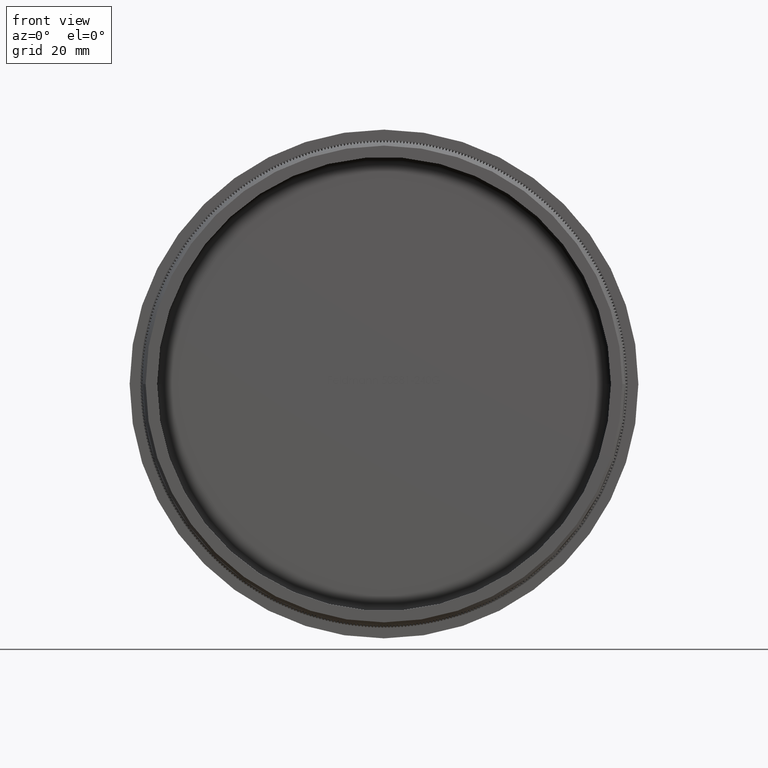
[diagram: clean part render]
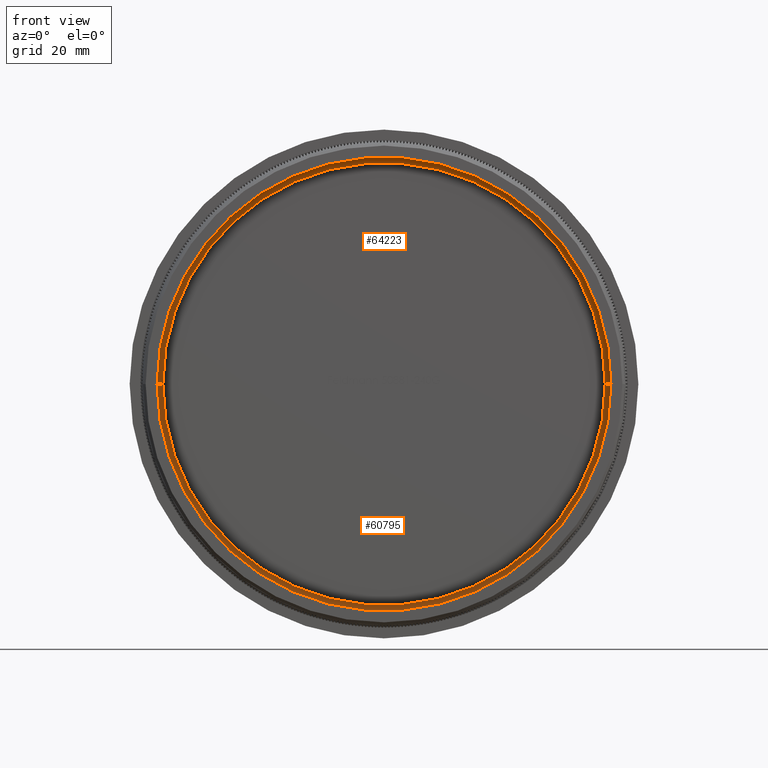
[diagram: same view with one multi-face feature highlighted, each face labeled with its STEP entity id]
A machine part, front view. The highlighted faces form ONE feature: a constant-radius fillet chain: 2 tangent blend faces with common blend radius 1 mm. The faces share edges in the B-rep.
Their STEP definitions:
[1] entity #64223 (Torus):
#4940 = VERTEX_POINT ( 'NONE', #76260 ) ;
#7096 = ORIENTED_EDGE ( 'NONE', *, *, #51176, .F. ) ;
#7607 = CARTESIAN_POINT ( 'NONE',  ( -3.245114972974378200E-015, 15.00000000000005900, 0.0000000000000000000 ) ) ;
#8862 = CIRCLE ( 'NONE', #23316, 39.65000000000002000 ) ;
#10571 = DIRECTION ( 'NONE',  ( 1.224646799147353200E-016, -3.974119664518481600E-031, 1.000000000000000000 ) ) ;
#12099 = EDGE_CURVE ( 'NONE', #40435, #62046, #8862, .T. ) ;
#13302 = CARTESIAN_POINT ( 'NONE',  ( -3.245114972974378200E-015, 15.00000000000005900, 0.0000000000000000000 ) ) ;
#13958 = AXIS2_PLACEMENT_3D ( 'NONE', #40005, #75942, #15811 ) ;
#15811 = DIRECTION ( 'NONE',  ( 1.000000000000000000, -3.231567665467789200E-015, 0.0000000000000000000 ) ) ;
#16592 = DIRECTION ( 'NONE',  ( -1.000000000000000000, 0.0000000000000000000, 0.0000000000000000000 ) ) ;
#19312 = TOROIDAL_SURFACE ( 'NONE', #62501, 38.65000000000002000, 1.000000000000000000 ) ;
#19665 = DIRECTION ( 'NONE',  ( -3.245114972974590400E-015, -1.000000000000000000, -0.0000000000000000000 ) ) ;
#20673 = CIRCLE ( 'NONE', #64002, 1.000000000000000900 ) ;
#23316 = AXIS2_PLACEMENT_3D ( 'NONE', #13302, #24628, #55585 ) ;
#24217 = ORIENTED_EDGE ( 'NONE', *, *, #12099, .F. ) ;
#24628 = DIRECTION ( 'NONE',  ( 3.245114972974590400E-015, 1.000000000000000000, 0.0000000000000000000 ) ) ;
#26921 = VERTEX_POINT ( 'NONE', #67040 ) ;
#27485 = CIRCLE ( 'NONE', #13958, 38.65000000000002000 ) ;
#27765 = FACE_OUTER_BOUND ( 'NONE', #67004, .T. ) ;
#31668 = CARTESIAN_POINT ( 'NONE',  ( -39.65000000000002000, 15.00000000000018700, 4.855724558619257500E-015 ) ) ;
#34498 = DIRECTION ( 'NONE',  ( 0.0000000000000000000, 0.0000000000000000000, -1.000000000000000000 ) ) ;
#37591 = ORIENTED_EDGE ( 'NONE', *, *, #42140, .T. ) ;
#40005 = CARTESIAN_POINT ( 'NONE',  ( 2.157041537713704200E-028, 16.00000000000006000, 0.0000000000000000000 ) ) ;
#40435 = VERTEX_POINT ( 'NONE', #31668 ) ;
#41163 = CARTESIAN_POINT ( 'NONE',  ( 39.65000000000002000, 14.99999999999993100, 0.0000000000000000000 ) ) ;
#42140 = EDGE_CURVE ( 'NONE', #26921, #62046, #20673, .T. ) ;
#51176 = EDGE_CURVE ( 'NONE', #26921, #4940, #27485, .T. ) ;
#52316 = CARTESIAN_POINT ( 'NONE',  ( -38.65000000000002000, 15.00000000000018300, 4.733259878704522300E-015 ) ) ;
#52583 = DIRECTION ( 'NONE',  ( 1.000000000000000000, 0.0000000000000000000, -1.224646799147349500E-016 ) ) ;
#55585 = DIRECTION ( 'NONE',  ( 1.000000000000000000, -3.237567143058856700E-015, 0.0000000000000000000 ) ) ;
#57201 = AXIS2_PLACEMENT_3D ( 'NONE', #52316, #10571, #52583 ) ;
#61091 = CIRCLE ( 'NONE', #57201, 1.000000000000000900 ) ;
#62046 = VERTEX_POINT ( 'NONE', #41163 ) ;
#62501 = AXIS2_PLACEMENT_3D ( 'NONE', #7607, #19665, #73520 ) ;
#64002 = AXIS2_PLACEMENT_3D ( 'NONE', #64380, #34498, #16592 ) ;
#64223 = ADVANCED_FACE ( 'NONE', ( #27765 ), #19312, .F. ) ;
#64380 = CARTESIAN_POINT ( 'NONE',  ( 38.65000000000002000, 14.99999999999993400, 0.0000000000000000000 ) ) ;
#67004 = EDGE_LOOP ( 'NONE', ( #77628, #7096, #37591, #24217 ) ) ;
#67040 = CARTESIAN_POINT ( 'NONE',  ( 38.65000000000002000, 15.99999999999993400, 0.0000000000000000000 ) ) ;
#73520 = DIRECTION ( 'NONE',  ( 1.000000000000000000, -3.245114972974590400E-015, 0.0000000000000000000 ) ) ;
#75369 = EDGE_CURVE ( 'NONE', #4940, #40435, #61091, .T. ) ;
#75942 = DIRECTION ( 'NONE',  ( -3.245114972974590400E-015, -1.000000000000000000, -0.0000000000000000000 ) ) ;
#76260 = CARTESIAN_POINT ( 'NONE',  ( -38.65000000000002000, 16.00000000000018500, 4.794492218661889900E-015 ) ) ;
#77628 = ORIENTED_EDGE ( 'NONE', *, *, #75369, .F. ) ;
[2] entity #60795 (Torus):
#3689 = CARTESIAN_POINT ( 'NONE',  ( 2.157041537713704200E-028, 16.00000000000006000, 0.0000000000000000000 ) ) ;
#3834 = ORIENTED_EDGE ( 'NONE', *, *, #42140, .F. ) ;
#4940 = VERTEX_POINT ( 'NONE', #76260 ) ;
#9999 = DIRECTION ( 'NONE',  ( -3.245114972974590400E-015, -1.000000000000000000, -0.0000000000000000000 ) ) ;
#10571 = DIRECTION ( 'NONE',  ( 1.224646799147353200E-016, -3.974119664518481600E-031, 1.000000000000000000 ) ) ;
#16592 = DIRECTION ( 'NONE',  ( -1.000000000000000000, 0.0000000000000000000, 0.0000000000000000000 ) ) ;
#17228 = ORIENTED_EDGE ( 'NONE', *, *, #75369, .T. ) ;
#18605 = DIRECTION ( 'NONE',  ( 1.000000000000000000, -3.237567143058856700E-015, 0.0000000000000000000 ) ) ;
#20170 = EDGE_CURVE ( 'NONE', #62046, #40435, #32838, .T. ) ;
#20673 = CIRCLE ( 'NONE', #64002, 1.000000000000000900 ) ;
#22094 = CIRCLE ( 'NONE', #33778, 38.65000000000002000 ) ;
#24316 = EDGE_CURVE ( 'NONE', #4940, #26921, #22094, .T. ) ;
#26287 = ORIENTED_EDGE ( 'NONE', *, *, #20170, .F. ) ;
#26921 = VERTEX_POINT ( 'NONE', #67040 ) ;
#29801 = DIRECTION ( 'NONE',  ( -3.245114972974590400E-015, -1.000000000000000000, -0.0000000000000000000 ) ) ;
#29939 = DIRECTION ( 'NONE',  ( 3.245114972974590400E-015, 1.000000000000000000, 0.0000000000000000000 ) ) ;
#30054 = DIRECTION ( 'NONE',  ( 1.000000000000000000, -3.245114972974590400E-015, 0.0000000000000000000 ) ) ;
#31668 = CARTESIAN_POINT ( 'NONE',  ( -39.65000000000002000, 15.00000000000018700, 4.855724558619257500E-015 ) ) ;
#32838 = CIRCLE ( 'NONE', #34582, 39.65000000000002000 ) ;
#33778 = AXIS2_PLACEMENT_3D ( 'NONE', #3689, #9999, #58042 ) ;
#34498 = DIRECTION ( 'NONE',  ( 0.0000000000000000000, 0.0000000000000000000, -1.000000000000000000 ) ) ;
#34582 = AXIS2_PLACEMENT_3D ( 'NONE', #53807, #29939, #18605 ) ;
#35153 = AXIS2_PLACEMENT_3D ( 'NONE', #42114, #29801, #30054 ) ;
#40435 = VERTEX_POINT ( 'NONE', #31668 ) ;
#41163 = CARTESIAN_POINT ( 'NONE',  ( 39.65000000000002000, 14.99999999999993100, 0.0000000000000000000 ) ) ;
#42114 = CARTESIAN_POINT ( 'NONE',  ( -3.245114972974378200E-015, 15.00000000000005900, 0.0000000000000000000 ) ) ;
#42140 = EDGE_CURVE ( 'NONE', #26921, #62046, #20673, .T. ) ;
#44719 = EDGE_LOOP ( 'NONE', ( #46795, #17228, #26287, #3834 ) ) ;
#46795 = ORIENTED_EDGE ( 'NONE', *, *, #24316, .F. ) ;
#52316 = CARTESIAN_POINT ( 'NONE',  ( -38.65000000000002000, 15.00000000000018300, 4.733259878704522300E-015 ) ) ;
#52583 = DIRECTION ( 'NONE',  ( 1.000000000000000000, 0.0000000000000000000, -1.224646799147349500E-016 ) ) ;
#53807 = CARTESIAN_POINT ( 'NONE',  ( -3.245114972974378200E-015, 15.00000000000005900, 0.0000000000000000000 ) ) ;
#57201 = AXIS2_PLACEMENT_3D ( 'NONE', #52316, #10571, #52583 ) ;
#58042 = DIRECTION ( 'NONE',  ( 1.000000000000000000, -3.231567665467789200E-015, 0.0000000000000000000 ) ) ;
#60088 = FACE_OUTER_BOUND ( 'NONE', #44719, .T. ) ;
#60795 = ADVANCED_FACE ( 'NONE', ( #60088 ), #69446, .F. ) ;
#61091 = CIRCLE ( 'NONE', #57201, 1.000000000000000900 ) ;
#62046 = VERTEX_POINT ( 'NONE', #41163 ) ;
#64002 = AXIS2_PLACEMENT_3D ( 'NONE', #64380, #34498, #16592 ) ;
#64380 = CARTESIAN_POINT ( 'NONE',  ( 38.65000000000002000, 14.99999999999993400, 0.0000000000000000000 ) ) ;
#67040 = CARTESIAN_POINT ( 'NONE',  ( 38.65000000000002000, 15.99999999999993400, 0.0000000000000000000 ) ) ;
#69446 = TOROIDAL_SURFACE ( 'NONE', #35153, 38.65000000000002000, 1.000000000000000000 ) ;
#75369 = EDGE_CURVE ( 'NONE', #4940, #40435, #61091, .T. ) ;
#76260 = CARTESIAN_POINT ( 'NONE',  ( -38.65000000000002000, 16.00000000000018500, 4.794492218661889900E-015 ) ) ;